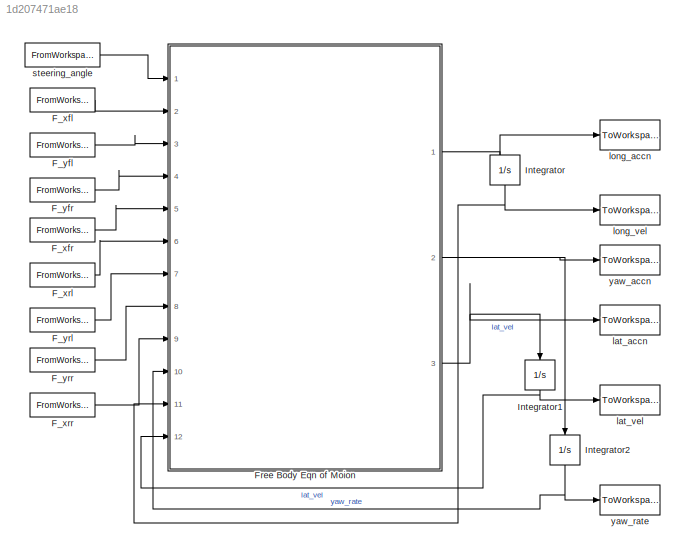
MODEL slx_1d207471ae18
KIND model
CONFIG AbsTol = auto
CONFIG FixedStep = auto
CONFIG MaxStep = auto
CONFIG MinStep = auto
CONFIG RelTol = 1e-3
CONFIG SampleTimeConstraint = Unconstrained
CONFIG Solver = ode45
CONFIG SolverMode = Auto
CONFIG SolverName = ode45
CONFIG StartTime = 0.0
CONFIG StopTime = 10.0
BLOCK [FromWorkspace] F_xfl
  SampleTime = 0
  VariableName = F_xfl
  ZeroCross = on
BLOCK [FromWorkspace] F_xfr
  SampleTime = 0
  VariableName = F_xfr
  ZeroCross = on
BLOCK [FromWorkspace] F_xrl
  SampleTime = 0
  VariableName = F_xrl
  ZeroCross = on
BLOCK [FromWorkspace] F_xrr
  SampleTime = 0
  VariableName = F_xrr
  ZeroCross = on
BLOCK [FromWorkspace] F_yfl
  SampleTime = 0
  VariableName = F_yfl
  ZeroCross = on
BLOCK [FromWorkspace] F_yfr
  SampleTime = 0
  VariableName = F_yfr
  ZeroCross = on
BLOCK [FromWorkspace] F_yrl
  SampleTime = 0
  VariableName = F_yrl
  ZeroCross = on
BLOCK [FromWorkspace] F_yrr
  SampleTime = 0
  VariableName = F_yrr
  ZeroCross = on
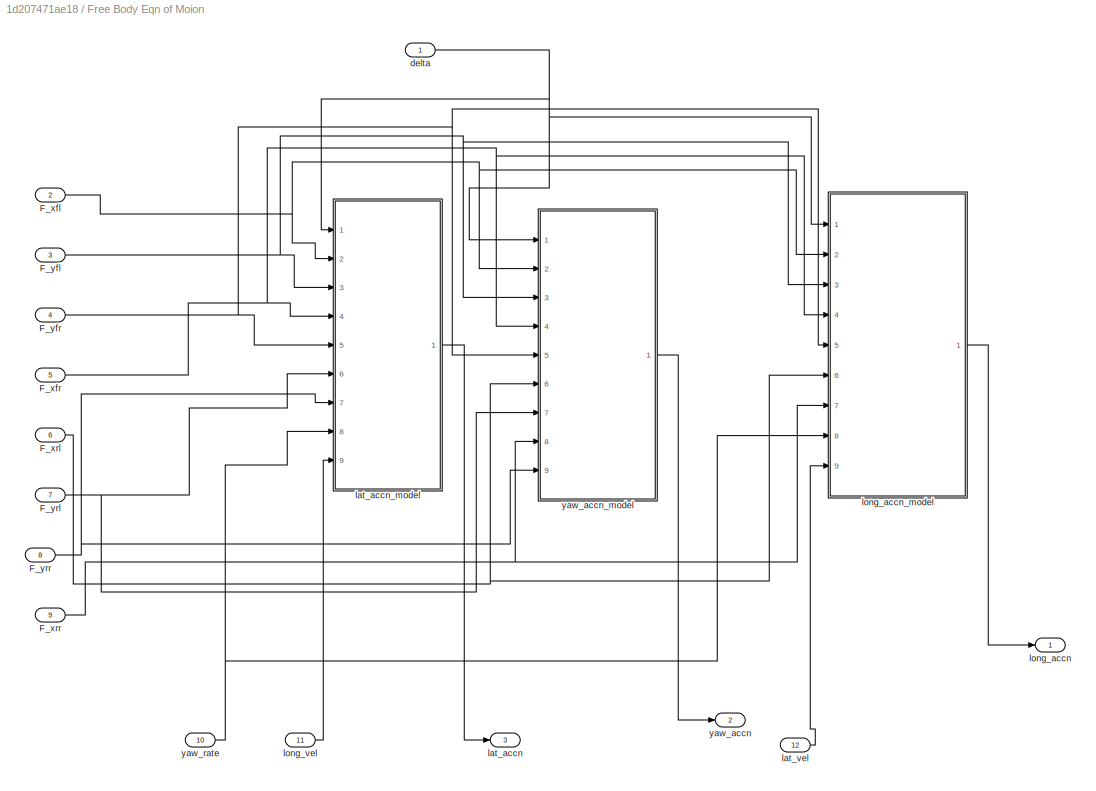
BLOCK [SubSystem] Free Body Eqn of Moion
  Ports = [12, 3]
  RequestExecContextInheritance = off
BLOCK [Inport] Free Body Eqn of Moion/F_xfl
  IconDisplay = Port number
  Port = 2
BLOCK [Inport] Free Body Eqn of Moion/F_xfr
  IconDisplay = Port number
  Port = 5
BLOCK [Inport] Free Body Eqn of Moion/F_xrl
  IconDisplay = Port number
  Port = 6
BLOCK [Inport] Free Body Eqn of Moion/F_xrr
  IconDisplay = Port number
  Port = 9
BLOCK [Inport] Free Body Eqn of Moion/F_yfl
  IconDisplay = Port number
  Port = 3
BLOCK [Inport] Free Body Eqn of Moion/F_yfr
  IconDisplay = Port number
  Port = 4
BLOCK [Inport] Free Body Eqn of Moion/F_yrl
  IconDisplay = Port number
  Port = 7
BLOCK [Inport] Free Body Eqn of Moion/F_yrr
  IconDisplay = Port number
  Port = 8
BLOCK [Inport] Free Body Eqn of Moion/delta
  IconDisplay = Port number
BLOCK [Outport] Free Body Eqn of Moion/lat_accn
  IconDisplay = Port number
  Port = 3
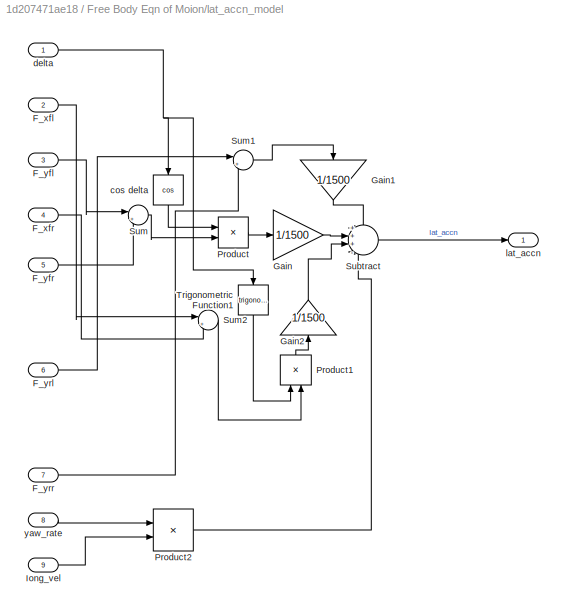
BLOCK [SubSystem] Free Body Eqn of Moion/lat_accn_model
  Ports = [9, 1]
  RequestExecContextInheritance = off
BLOCK [Inport] Free Body Eqn of Moion/lat_accn_model/F_xfl
  IconDisplay = Port number
  Port = 2
BLOCK [Inport] Free Body Eqn of Moion/lat_accn_model/F_xfr
  IconDisplay = Port number
  Port = 4
BLOCK [Inport] Free Body Eqn of Moion/lat_accn_model/F_yfl
  IconDisplay = Port number
  Port = 3
BLOCK [Inport] Free Body Eqn of Moion/lat_accn_model/F_yfr
  IconDisplay = Port number
  Port = 5
BLOCK [Inport] Free Body Eqn of Moion/lat_accn_model/F_yrl
  IconDisplay = Port number
  Port = 6
BLOCK [Inport] Free Body Eqn of Moion/lat_accn_model/F_yrr
  IconDisplay = Port number
  Port = 7
BLOCK [Gain] Free Body Eqn of Moion/lat_accn_model/Gain
  Gain = 1/1500
  OutDataTypeStr = Inherit: Inherit via internal rule
  ParamDataTypeStr = Inherit: Inherit via internal rule
  SaturateOnIntegerOverflow = off
BLOCK [Gain] Free Body Eqn of Moion/lat_accn_model/Gain1
  Gain = 1/1500
  OutDataTypeStr = Inherit: Inherit via internal rule
  ParamDataTypeStr = Inherit: Inherit via internal rule
  SaturateOnIntegerOverflow = off
BLOCK [Gain] Free Body Eqn of Moion/lat_accn_model/Gain2
  Gain = 1/1500
  OutDataTypeStr = Inherit: Inherit via internal rule
  ParamDataTypeStr = Inherit: Inherit via internal rule
  SaturateOnIntegerOverflow = off
BLOCK [Inport] Free Body Eqn of Moion/lat_accn_model/Iong_vel
  IconDisplay = Port number
  Port = 9
BLOCK [Product] Free Body Eqn of Moion/lat_accn_model/Product
  InputSameDT = off
  OutDataTypeStr = Inherit: Inherit via internal rule
  Ports = [2, 1]
  RndMeth = Floor
  SaturateOnIntegerOverflow = off
BLOCK [Product] Free Body Eqn of Moion/lat_accn_model/Product1
  InputSameDT = off
  OutDataTypeStr = Inherit: Inherit via internal rule
  Ports = [2, 1]
  RndMeth = Floor
  SaturateOnIntegerOverflow = off
BLOCK [Product] Free Body Eqn of Moion/lat_accn_model/Product2
  InputSameDT = off
  OutDataTypeStr = Inherit: Inherit via internal rule
  Ports = [2, 1]
  RndMeth = Floor
  SaturateOnIntegerOverflow = off
BLOCK [Sum] Free Body Eqn of Moion/lat_accn_model/Subtract
  IconShape = round
  InputSameDT = off
  Inputs = +++-
  OutDataTypeStr = Inherit: Inherit via internal rule
  Ports = [4, 1]
  SaturateOnIntegerOverflow = off
BLOCK [Sum] Free Body Eqn of Moion/lat_accn_model/Sum
  IconShape = round
  InputSameDT = off
  Inputs = |++
  OutDataTypeStr = Inherit: Inherit via internal rule
  Ports = [2, 1]
  SaturateOnIntegerOverflow = off
BLOCK [Sum] Free Body Eqn of Moion/lat_accn_model/Sum1
  IconShape = round
  InputSameDT = off
  Inputs = |++
  OutDataTypeStr = Inherit: Inherit via internal rule
  Ports = [2, 1]
  SaturateOnIntegerOverflow = off
BLOCK [Sum] Free Body Eqn of Moion/lat_accn_model/Sum2
  IconShape = round
  InputSameDT = off
  Inputs = |++
  OutDataTypeStr = Inherit: Inherit via internal rule
  Ports = [2, 1]
  SaturateOnIntegerOverflow = off
BLOCK [Trigonometry] Free Body Eqn of Moion/lat_accn_model/Trigonometric Function1
  Ports = [1, 1]
BLOCK [Trigonometry] Free Body Eqn of Moion/lat_accn_model/cos delta
  Operator = cos
  Ports = [1, 1]
BLOCK [Inport] Free Body Eqn of Moion/lat_accn_model/delta
  IconDisplay = Port number
BLOCK [Outport] Free Body Eqn of Moion/lat_accn_model/lat_accn
  IconDisplay = Port number
BLOCK [Inport] Free Body Eqn of Moion/lat_accn_model/yaw_rate
  IconDisplay = Port number
  Port = 8
BLOCK [Inport] Free Body Eqn of Moion/lat_vel
  IconDisplay = Port number
  Port = 12
BLOCK [Outport] Free Body Eqn of Moion/long_accn
  IconDisplay = Port number
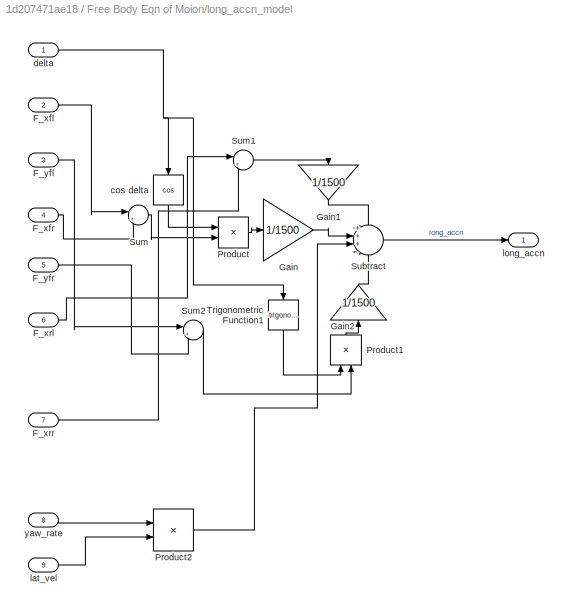
BLOCK [SubSystem] Free Body Eqn of Moion/long_accn_model
  Ports = [9, 1]
  RequestExecContextInheritance = off
BLOCK [Inport] Free Body Eqn of Moion/long_accn_model/F_xfl
  IconDisplay = Port number
  Port = 2
BLOCK [Inport] Free Body Eqn of Moion/long_accn_model/F_xfr
  IconDisplay = Port number
  Port = 4
BLOCK [Inport] Free Body Eqn of Moion/long_accn_model/F_xrl
  IconDisplay = Port number
  Port = 6
BLOCK [Inport] Free Body Eqn of Moion/long_accn_model/F_xrr
  IconDisplay = Port number
  Port = 7
BLOCK [Inport] Free Body Eqn of Moion/long_accn_model/F_yfl
  IconDisplay = Port number
  Port = 3
BLOCK [Inport] Free Body Eqn of Moion/long_accn_model/F_yfr
  IconDisplay = Port number
  Port = 5
BLOCK [Gain] Free Body Eqn of Moion/long_accn_model/Gain
  Gain = 1/1500
  OutDataTypeStr = Inherit: Inherit via internal rule
  ParamDataTypeStr = Inherit: Inherit via internal rule
  SaturateOnIntegerOverflow = off
BLOCK [Gain] Free Body Eqn of Moion/long_accn_model/Gain1
  Gain = 1/1500
  OutDataTypeStr = Inherit: Inherit via internal rule
  ParamDataTypeStr = Inherit: Inherit via internal rule
  SaturateOnIntegerOverflow = off
BLOCK [Gain] Free Body Eqn of Moion/long_accn_model/Gain2
  Gain = 1/1500
  OutDataTypeStr = Inherit: Inherit via internal rule
  ParamDataTypeStr = Inherit: Inherit via internal rule
  SaturateOnIntegerOverflow = off
BLOCK [Product] Free Body Eqn of Moion/long_accn_model/Product
  InputSameDT = off
  OutDataTypeStr = Inherit: Inherit via internal rule
  Ports = [2, 1]
  RndMeth = Floor
  SaturateOnIntegerOverflow = off
BLOCK [Product] Free Body Eqn of Moion/long_accn_model/Product1
  InputSameDT = off
  OutDataTypeStr = Inherit: Inherit via internal rule
  Ports = [2, 1]
  RndMeth = Floor
  SaturateOnIntegerOverflow = off
BLOCK [Product] Free Body Eqn of Moion/long_accn_model/Product2
  InputSameDT = off
  OutDataTypeStr = Inherit: Inherit via internal rule
  Ports = [2, 1]
  RndMeth = Floor
  SaturateOnIntegerOverflow = off
BLOCK [Sum] Free Body Eqn of Moion/long_accn_model/Subtract
  IconShape = round
  InputSameDT = off
  Inputs = +++-
  OutDataTypeStr = Inherit: Inherit via internal rule
  Ports = [4, 1]
  SaturateOnIntegerOverflow = off
BLOCK [Sum] Free Body Eqn of Moion/long_accn_model/Sum
  IconShape = round
  InputSameDT = off
  Inputs = |++
  OutDataTypeStr = Inherit: Inherit via internal rule
  Ports = [2, 1]
  SaturateOnIntegerOverflow = off
BLOCK [Sum] Free Body Eqn of Moion/long_accn_model/Sum1
  IconShape = round
  InputSameDT = off
  Inputs = |++
  OutDataTypeStr = Inherit: Inherit via internal rule
  Ports = [2, 1]
  SaturateOnIntegerOverflow = off
BLOCK [Sum] Free Body Eqn of Moion/long_accn_model/Sum2
  IconShape = round
  InputSameDT = off
  Inputs = |++
  OutDataTypeStr = Inherit: Inherit via internal rule
  Ports = [2, 1]
  SaturateOnIntegerOverflow = off
BLOCK [Trigonometry] Free Body Eqn of Moion/long_accn_model/Trigonometric Function1
  Ports = [1, 1]
BLOCK [Trigonometry] Free Body Eqn of Moion/long_accn_model/cos delta
  Operator = cos
  Ports = [1, 1]
BLOCK [Inport] Free Body Eqn of Moion/long_accn_model/delta
  IconDisplay = Port number
BLOCK [Inport] Free Body Eqn of Moion/long_accn_model/lat_vel
  IconDisplay = Port number
  Port = 9
BLOCK [Outport] Free Body Eqn of Moion/long_accn_model/long_accn
  IconDisplay = Port number
BLOCK [Inport] Free Body Eqn of Moion/long_accn_model/yaw_rate
  IconDisplay = Port number
  Port = 8
BLOCK [Inport] Free Body Eqn of Moion/long_vel
  IconDisplay = Port number
  Port = 11
BLOCK [Outport] Free Body Eqn of Moion/yaw_accn
  IconDisplay = Port number
  Port = 2
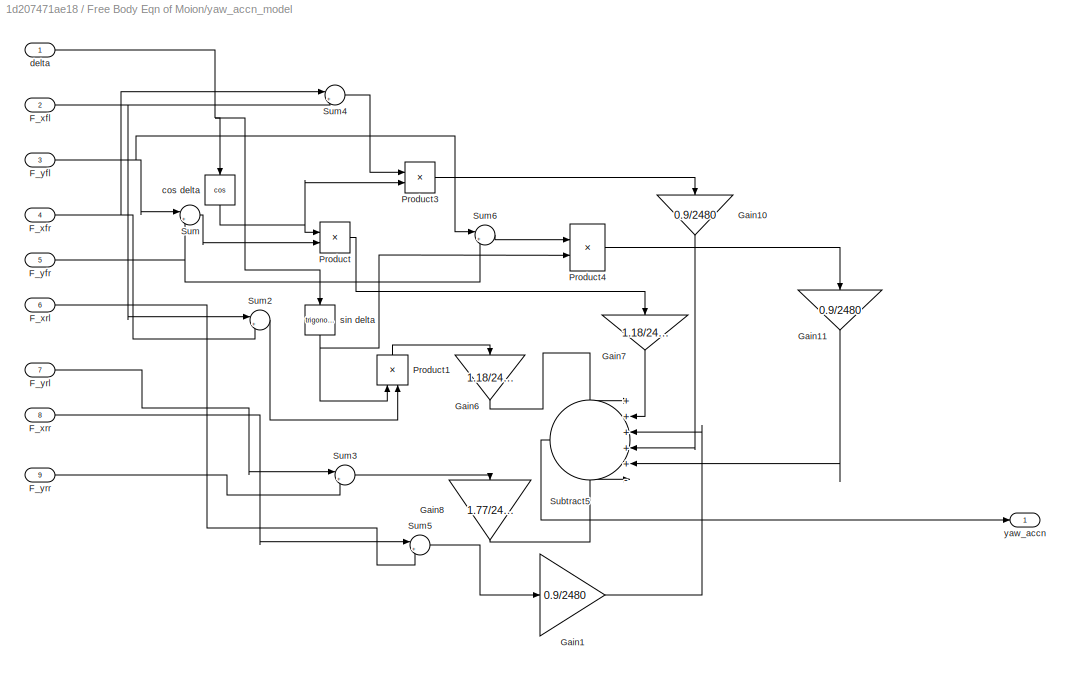
BLOCK [SubSystem] Free Body Eqn of Moion/yaw_accn_model
  Ports = [9, 1]
  RequestExecContextInheritance = off
BLOCK [Inport] Free Body Eqn of Moion/yaw_accn_model/F_xfl
  IconDisplay = Port number
  Port = 2
BLOCK [Inport] Free Body Eqn of Moion/yaw_accn_model/F_xfr
  IconDisplay = Port number
  Port = 4
BLOCK [Inport] Free Body Eqn of Moion/yaw_accn_model/F_xrl
  IconDisplay = Port number
  Port = 6
BLOCK [Inport] Free Body Eqn of Moion/yaw_accn_model/F_xrr
  IconDisplay = Port number
  Port = 8
BLOCK [Inport] Free Body Eqn of Moion/yaw_accn_model/F_yfl
  IconDisplay = Port number
  Port = 3
BLOCK [Inport] Free Body Eqn of Moion/yaw_accn_model/F_yfr
  IconDisplay = Port number
  Port = 5
BLOCK [Inport] Free Body Eqn of Moion/yaw_accn_model/F_yrl
  IconDisplay = Port number
  Port = 7
BLOCK [Inport] Free Body Eqn of Moion/yaw_accn_model/F_yrr
  IconDisplay = Port number
  Port = 9
BLOCK [Gain] Free Body Eqn of Moion/yaw_accn_model/Gain1
  Gain = 0.9/2480
  OutDataTypeStr = Inherit: Inherit via internal rule
  ParamDataTypeStr = Inherit: Inherit via internal rule
  SaturateOnIntegerOverflow = off
BLOCK [Gain] Free Body Eqn of Moion/yaw_accn_model/Gain10
  Gain = 0.9/2480
  OutDataTypeStr = Inherit: Inherit via internal rule
  ParamDataTypeStr = Inherit: Inherit via internal rule
  SaturateOnIntegerOverflow = off
BLOCK [Gain] Free Body Eqn of Moion/yaw_accn_model/Gain11
  Gain = 0.9/2480
  OutDataTypeStr = Inherit: Inherit via internal rule
  ParamDataTypeStr = Inherit: Inherit via internal rule
  SaturateOnIntegerOverflow = off
BLOCK [Gain] Free Body Eqn of Moion/yaw_accn_model/Gain6
  Gain = 1.18/2480
  OutDataTypeStr = Inherit: Inherit via internal rule
  ParamDataTypeStr = Inherit: Inherit via internal rule
  SaturateOnIntegerOverflow = off
BLOCK [Gain] Free Body Eqn of Moion/yaw_accn_model/Gain7
  Gain = 1.18/2480
  OutDataTypeStr = Inherit: Inherit via internal rule
  ParamDataTypeStr = Inherit: Inherit via internal rule
  SaturateOnIntegerOverflow = off
BLOCK [Gain] Free Body Eqn of Moion/yaw_accn_model/Gain8
  Gain = 1.77/2480
  OutDataTypeStr = Inherit: Inherit via internal rule
  ParamDataTypeStr = Inherit: Inherit via internal rule
  SaturateOnIntegerOverflow = off
BLOCK [Product] Free Body Eqn of Moion/yaw_accn_model/Product
  InputSameDT = off
  OutDataTypeStr = Inherit: Inherit via internal rule
  Ports = [2, 1]
  RndMeth = Floor
  SaturateOnIntegerOverflow = off
BLOCK [Product] Free Body Eqn of Moion/yaw_accn_model/Product1
  InputSameDT = off
  OutDataTypeStr = Inherit: Inherit via internal rule
  Ports = [2, 1]
  RndMeth = Floor
  SaturateOnIntegerOverflow = off
BLOCK [Product] Free Body Eqn of Moion/yaw_accn_model/Product3
  InputSameDT = off
  OutDataTypeStr = Inherit: Inherit via internal rule
  Ports = [2, 1]
  RndMeth = Floor
  SaturateOnIntegerOverflow = off
BLOCK [Product] Free Body Eqn of Moion/yaw_accn_model/Product4
  InputSameDT = off
  OutDataTypeStr = Inherit: Inherit via internal rule
  Ports = [2, 1]
  RndMeth = Floor
  SaturateOnIntegerOverflow = off
BLOCK [Sum] Free Body Eqn of Moion/yaw_accn_model/Subtract5
  IconShape = round
  InputSameDT = off
  Inputs = +++++-
  OutDataTypeStr = Inherit: Inherit via internal rule
  Ports = [6, 1]
  SaturateOnIntegerOverflow = off
BLOCK [Sum] Free Body Eqn of Moion/yaw_accn_model/Sum
  IconShape = round
  InputSameDT = off
  Inputs = |++
  OutDataTypeStr = Inherit: Inherit via internal rule
  Ports = [2, 1]
  SaturateOnIntegerOverflow = off
BLOCK [Sum] Free Body Eqn of Moion/yaw_accn_model/Sum2
  IconShape = round
  InputSameDT = off
  Inputs = |++
  OutDataTypeStr = Inherit: Inherit via internal rule
  Ports = [2, 1]
  SaturateOnIntegerOverflow = off
BLOCK [Sum] Free Body Eqn of Moion/yaw_accn_model/Sum3
  IconShape = round
  InputSameDT = off
  Inputs = |++
  OutDataTypeStr = Inherit: Inherit via internal rule
  Ports = [2, 1]
  SaturateOnIntegerOverflow = off
BLOCK [Sum] Free Body Eqn of Moion/yaw_accn_model/Sum4
  IconShape = round
  InputSameDT = off
  Inputs = |+-
  OutDataTypeStr = Inherit: Inherit via internal rule
  Ports = [2, 1]
  SaturateOnIntegerOverflow = off
BLOCK [Sum] Free Body Eqn of Moion/yaw_accn_model/Sum5
  IconShape = round
  InputSameDT = off
  Inputs = |+-
  OutDataTypeStr = Inherit: Inherit via internal rule
  Ports = [2, 1]
  SaturateOnIntegerOverflow = off
BLOCK [Sum] Free Body Eqn of Moion/yaw_accn_model/Sum6
  IconShape = round
  InputSameDT = off
  Inputs = |+-
  OutDataTypeStr = Inherit: Inherit via internal rule
  Ports = [2, 1]
  SaturateOnIntegerOverflow = off
BLOCK [Trigonometry] Free Body Eqn of Moion/yaw_accn_model/cos delta
  Operator = cos
  Ports = [1, 1]
BLOCK [Inport] Free Body Eqn of Moion/yaw_accn_model/delta
  IconDisplay = Port number
BLOCK [Trigonometry] Free Body Eqn of Moion/yaw_accn_model/sin delta 
  Ports = [1, 1]
BLOCK [Outport] Free Body Eqn of Moion/yaw_accn_model/yaw_accn
  IconDisplay = Port number
BLOCK [Inport] Free Body Eqn of Moion/yaw_rate
  IconDisplay = Port number
  Port = 10
BLOCK [Integrator] Integrator
  Ports = [1, 1]
BLOCK [Integrator] Integrator1
  Ports = [1, 1]
BLOCK [Integrator] Integrator2
  Ports = [1, 1]
BLOCK [ToWorkspace] lat_accn
  FixptAsFi = on
  MaxDataPoints = inf
  Ports = [1]
  SampleTime = -1
  Save2DSignal = 3-D array (concatenate along third dimension)
  SaveFormat = Timeseries
  VariableName = lat_accn
BLOCK [ToWorkspace] lat_vel
  FixptAsFi = on
  MaxDataPoints = inf
  Ports = [1]
  SampleTime = -1
  Save2DSignal = 3-D array (concatenate along third dimension)
  SaveFormat = Timeseries
  VariableName = lat_vel
BLOCK [ToWorkspace] long_accn
  FixptAsFi = on
  MaxDataPoints = inf
  Ports = [1]
  SampleTime = -1
  Save2DSignal = 3-D array (concatenate along third dimension)
  SaveFormat = Timeseries
  VariableName = long_accn
BLOCK [ToWorkspace] long_vel
  FixptAsFi = on
  MaxDataPoints = inf
  Ports = [1]
  SampleTime = -1
  Save2DSignal = 3-D array (concatenate along third dimension)
  SaveFormat = Timeseries
  VariableName = long_vel
BLOCK [FromWorkspace] steering_angle
  SampleTime = 0
  VariableName = steering_angle
  ZeroCross = on
BLOCK [ToWorkspace] yaw_accn
  FixptAsFi = on
  MaxDataPoints = inf
  Ports = [1]
  SampleTime = -1
  Save2DSignal = 3-D array (concatenate along third dimension)
  SaveFormat = Timeseries
  VariableName = yaw_accn
BLOCK [ToWorkspace] yaw_rate
  FixptAsFi = on
  MaxDataPoints = inf
  Ports = [1]
  SampleTime = -1
  Save2DSignal = 3-D array (concatenate along third dimension)
  SaveFormat = Timeseries
  VariableName = yaw_rate
LINE F_xfl:1 -> Free Body Eqn of Moion:2
LINE F_xfr:1 -> Free Body Eqn of Moion:5
LINE F_xrl:1 -> Free Body Eqn of Moion:6
LINE F_xrr:1 -> Free Body Eqn of Moion:9
LINE F_yfl:1 -> Free Body Eqn of Moion:3
LINE F_yfr:1 -> Free Body Eqn of Moion:4
LINE F_yrl:1 -> Free Body Eqn of Moion:7
LINE F_yrr:1 -> Free Body Eqn of Moion:8
NET Free Body Eqn of Moion/F_xfl:1 -> Free Body Eqn of Moion/lat_accn_model:2, Free Body Eqn of Moion/long_accn_model:2, Free Body Eqn of Moion/yaw_accn_model:2
NET Free Body Eqn of Moion/F_xfr:1 -> Free Body Eqn of Moion/lat_accn_model:4, Free Body Eqn of Moion/long_accn_model:4, Free Body Eqn of Moion/yaw_accn_model:4
NET Free Body Eqn of Moion/F_xrl:1 -> Free Body Eqn of Moion/long_accn_model:6, Free Body Eqn of Moion/yaw_accn_model:6
NET Free Body Eqn of Moion/F_xrr:1 -> Free Body Eqn of Moion/long_accn_model:7, Free Body Eqn of Moion/yaw_accn_model:8
NET Free Body Eqn of Moion/F_yfl:1 -> Free Body Eqn of Moion/lat_accn_model:3, Free Body Eqn of Moion/long_accn_model:3, Free Body Eqn of Moion/yaw_accn_model:3
NET Free Body Eqn of Moion/F_yfr:1 -> Free Body Eqn of Moion/lat_accn_model:5, Free Body Eqn of Moion/long_accn_model:5, Free Body Eqn of Moion/yaw_accn_model:5
NET Free Body Eqn of Moion/F_yrl:1 -> Free Body Eqn of Moion/lat_accn_model:6, Free Body Eqn of Moion/yaw_accn_model:7
NET Free Body Eqn of Moion/F_yrr:1 -> Free Body Eqn of Moion/lat_accn_model:7, Free Body Eqn of Moion/yaw_accn_model:9
NET Free Body Eqn of Moion/delta:1 -> Free Body Eqn of Moion/lat_accn_model:1, Free Body Eqn of Moion/long_accn_model:1, Free Body Eqn of Moion/yaw_accn_model:1
LINE Free Body Eqn of Moion/lat_accn_model/F_xfl:1 -> Free Body Eqn of Moion/lat_accn_model/Sum2:1
LINE Free Body Eqn of Moion/lat_accn_model/F_xfr:1 -> Free Body Eqn of Moion/lat_accn_model/Sum2:2
LINE Free Body Eqn of Moion/lat_accn_model/F_yfl:1 -> Free Body Eqn of Moion/lat_accn_model/Sum:1
LINE Free Body Eqn of Moion/lat_accn_model/F_yfr:1 -> Free Body Eqn of Moion/lat_accn_model/Sum:2
LINE Free Body Eqn of Moion/lat_accn_model/F_yrl:1 -> Free Body Eqn of Moion/lat_accn_model/Sum1:1
LINE Free Body Eqn of Moion/lat_accn_model/F_yrr:1 -> Free Body Eqn of Moion/lat_accn_model/Sum1:2
LINE Free Body Eqn of Moion/lat_accn_model/Gain1:1 -> Free Body Eqn of Moion/lat_accn_model/Subtract:1
LINE Free Body Eqn of Moion/lat_accn_model/Gain2:1 -> Free Body Eqn of Moion/lat_accn_model/Subtract:3
LINE Free Body Eqn of Moion/lat_accn_model/Gain:1 -> Free Body Eqn of Moion/lat_accn_model/Subtract:2
LINE Free Body Eqn of Moion/lat_accn_model/Iong_vel:1 -> Free Body Eqn of Moion/lat_accn_model/Product2:2
LINE Free Body Eqn of Moion/lat_accn_model/Product1:1 -> Free Body Eqn of Moion/lat_accn_model/Gain2:1
LINE Free Body Eqn of Moion/lat_accn_model/Product2:1 -> Free Body Eqn of Moion/lat_accn_model/Subtract:4
LINE Free Body Eqn of Moion/lat_accn_model/Product:1 -> Free Body Eqn of Moion/lat_accn_model/Gain:1
LINE Free Body Eqn of Moion/lat_accn_model/Subtract:1 -> Free Body Eqn of Moion/lat_accn_model/lat_accn:1
LINE Free Body Eqn of Moion/lat_accn_model/Sum1:1 -> Free Body Eqn of Moion/lat_accn_model/Gain1:1
LINE Free Body Eqn of Moion/lat_accn_model/Sum2:1 -> Free Body Eqn of Moion/lat_accn_model/Product1:2
LINE Free Body Eqn of Moion/lat_accn_model/Sum:1 -> Free Body Eqn of Moion/lat_accn_model/Product:2
LINE Free Body Eqn of Moion/lat_accn_model/Trigonometric Function1:1 -> Free Body Eqn of Moion/lat_accn_model/Product1:1
LINE Free Body Eqn of Moion/lat_accn_model/cos delta:1 -> Free Body Eqn of Moion/lat_accn_model/Product:1
NET Free Body Eqn of Moion/lat_accn_model/delta:1 -> Free Body Eqn of Moion/lat_accn_model/Trigonometric Function1:1, Free Body Eqn of Moion/lat_accn_model/cos delta:1
LINE Free Body Eqn of Moion/lat_accn_model/yaw_rate:1 -> Free Body Eqn of Moion/lat_accn_model/Product2:1
LINE Free Body Eqn of Moion/lat_accn_model:1 -> Free Body Eqn of Moion/lat_accn:1
LINE Free Body Eqn of Moion/lat_vel:1 -> Free Body Eqn of Moion/long_accn_model:9
LINE Free Body Eqn of Moion/long_accn_model/F_xfl:1 -> Free Body Eqn of Moion/long_accn_model/Sum:1
LINE Free Body Eqn of Moion/long_accn_model/F_xfr:1 -> Free Body Eqn of Moion/long_accn_model/Sum:2
LINE Free Body Eqn of Moion/long_accn_model/F_xrl:1 -> Free Body Eqn of Moion/long_accn_model/Sum1:1
LINE Free Body Eqn of Moion/long_accn_model/F_xrr:1 -> Free Body Eqn of Moion/long_accn_model/Sum1:2
LINE Free Body Eqn of Moion/long_accn_model/F_yfl:1 -> Free Body Eqn of Moion/long_accn_model/Sum2:1
LINE Free Body Eqn of Moion/long_accn_model/F_yfr:1 -> Free Body Eqn of Moion/long_accn_model/Sum2:2
LINE Free Body Eqn of Moion/long_accn_model/Gain1:1 -> Free Body Eqn of Moion/long_accn_model/Subtract:1
LINE Free Body Eqn of Moion/long_accn_model/Gain2:1 -> Free Body Eqn of Moion/long_accn_model/Subtract:4
LINE Free Body Eqn of Moion/long_accn_model/Gain:1 -> Free Body Eqn of Moion/long_accn_model/Subtract:2
LINE Free Body Eqn of Moion/long_accn_model/Product1:1 -> Free Body Eqn of Moion/long_accn_model/Gain2:1
LINE Free Body Eqn of Moion/long_accn_model/Product2:1 -> Free Body Eqn of Moion/long_accn_model/Subtract:3
LINE Free Body Eqn of Moion/long_accn_model/Product:1 -> Free Body Eqn of Moion/long_accn_model/Gain:1
LINE Free Body Eqn of Moion/long_accn_model/Subtract:1 -> Free Body Eqn of Moion/long_accn_model/long_accn:1
LINE Free Body Eqn of Moion/long_accn_model/Sum1:1 -> Free Body Eqn of Moion/long_accn_model/Gain1:1
LINE Free Body Eqn of Moion/long_accn_model/Sum2:1 -> Free Body Eqn of Moion/long_accn_model/Product1:2
LINE Free Body Eqn of Moion/long_accn_model/Sum:1 -> Free Body Eqn of Moion/long_accn_model/Product:2
LINE Free Body Eqn of Moion/long_accn_model/Trigonometric Function1:1 -> Free Body Eqn of Moion/long_accn_model/Product1:1
LINE Free Body Eqn of Moion/long_accn_model/cos delta:1 -> Free Body Eqn of Moion/long_accn_model/Product:1
NET Free Body Eqn of Moion/long_accn_model/delta:1 -> Free Body Eqn of Moion/long_accn_model/Trigonometric Function1:1, Free Body Eqn of Moion/long_accn_model/cos delta:1
LINE Free Body Eqn of Moion/long_accn_model/lat_vel:1 -> Free Body Eqn of Moion/long_accn_model/Product2:2
LINE Free Body Eqn of Moion/long_accn_model/yaw_rate:1 -> Free Body Eqn of Moion/long_accn_model/Product2:1
LINE Free Body Eqn of Moion/long_accn_model:1 -> Free Body Eqn of Moion/long_accn:1
LINE Free Body Eqn of Moion/long_vel:1 -> Free Body Eqn of Moion/lat_accn_model:9
NET Free Body Eqn of Moion/yaw_accn_model/F_xfl:1 -> Free Body Eqn of Moion/yaw_accn_model/Sum2:1, Free Body Eqn of Moion/yaw_accn_model/Sum4:2
NET Free Body Eqn of Moion/yaw_accn_model/F_xfr:1 -> Free Body Eqn of Moion/yaw_accn_model/Sum2:2, Free Body Eqn of Moion/yaw_accn_model/Sum4:1
LINE Free Body Eqn of Moion/yaw_accn_model/F_xrl:1 -> Free Body Eqn of Moion/yaw_accn_model/Sum5:2
LINE Free Body Eqn of Moion/yaw_accn_model/F_xrr:1 -> Free Body Eqn of Moion/yaw_accn_model/Sum5:1
NET Free Body Eqn of Moion/yaw_accn_model/F_yfl:1 -> Free Body Eqn of Moion/yaw_accn_model/Sum6:1, Free Body Eqn of Moion/yaw_accn_model/Sum:1
NET Free Body Eqn of Moion/yaw_accn_model/F_yfr:1 -> Free Body Eqn of Moion/yaw_accn_model/Sum6:2, Free Body Eqn of Moion/yaw_accn_model/Sum:2
LINE Free Body Eqn of Moion/yaw_accn_model/F_yrl:1 -> Free Body Eqn of Moion/yaw_accn_model/Sum3:1
LINE Free Body Eqn of Moion/yaw_accn_model/F_yrr:1 -> Free Body Eqn of Moion/yaw_accn_model/Sum3:2
LINE Free Body Eqn of Moion/yaw_accn_model/Gain10:1 -> Free Body Eqn of Moion/yaw_accn_model/Subtract5:4
LINE Free Body Eqn of Moion/yaw_accn_model/Gain11:1 -> Free Body Eqn of Moion/yaw_accn_model/Subtract5:5
LINE Free Body Eqn of Moion/yaw_accn_model/Gain1:1 -> Free Body Eqn of Moion/yaw_accn_model/Subtract5:3
LINE Free Body Eqn of Moion/yaw_accn_model/Gain6:1 -> Free Body Eqn of Moion/yaw_accn_model/Subtract5:1
LINE Free Body Eqn of Moion/yaw_accn_model/Gain7:1 -> Free Body Eqn of Moion/yaw_accn_model/Subtract5:2
LINE Free Body Eqn of Moion/yaw_accn_model/Gain8:1 -> Free Body Eqn of Moion/yaw_accn_model/Subtract5:6
LINE Free Body Eqn of Moion/yaw_accn_model/Product1:1 -> Free Body Eqn of Moion/yaw_accn_model/Gain6:1
LINE Free Body Eqn of Moion/yaw_accn_model/Product3:1 -> Free Body Eqn of Moion/yaw_accn_model/Gain10:1
LINE Free Body Eqn of Moion/yaw_accn_model/Product4:1 -> Free Body Eqn of Moion/yaw_accn_model/Gain11:1
LINE Free Body Eqn of Moion/yaw_accn_model/Product:1 -> Free Body Eqn of Moion/yaw_accn_model/Gain7:1
LINE Free Body Eqn of Moion/yaw_accn_model/Subtract5:1 -> Free Body Eqn of Moion/yaw_accn_model/yaw_accn:1
LINE Free Body Eqn of Moion/yaw_accn_model/Sum2:1 -> Free Body Eqn of Moion/yaw_accn_model/Product1:2
LINE Free Body Eqn of Moion/yaw_accn_model/Sum3:1 -> Free Body Eqn of Moion/yaw_accn_model/Gain8:1
LINE Free Body Eqn of Moion/yaw_accn_model/Sum4:1 -> Free Body Eqn of Moion/yaw_accn_model/Product3:1
LINE Free Body Eqn of Moion/yaw_accn_model/Sum5:1 -> Free Body Eqn of Moion/yaw_accn_model/Gain1:1
LINE Free Body Eqn of Moion/yaw_accn_model/Sum6:1 -> Free Body Eqn of Moion/yaw_accn_model/Product4:1
LINE Free Body Eqn of Moion/yaw_accn_model/Sum:1 -> Free Body Eqn of Moion/yaw_accn_model/Product:2
NET Free Body Eqn of Moion/yaw_accn_model/cos delta:1 -> Free Body Eqn of Moion/yaw_accn_model/Product3:2, Free Body Eqn of Moion/yaw_accn_model/Product:1
NET Free Body Eqn of Moion/yaw_accn_model/delta:1 -> Free Body Eqn of Moion/yaw_accn_model/cos delta:1, Free Body Eqn of Moion/yaw_accn_model/sin delta :1
NET Free Body Eqn of Moion/yaw_accn_model/sin delta :1 -> Free Body Eqn of Moion/yaw_accn_model/Product1:1, Free Body Eqn of Moion/yaw_accn_model/Product4:2
LINE Free Body Eqn of Moion/yaw_accn_model:1 -> Free Body Eqn of Moion/yaw_accn:1
NET Free Body Eqn of Moion/yaw_rate:1 -> Free Body Eqn of Moion/lat_accn_model:8, Free Body Eqn of Moion/long_accn_model:8
NET Free Body Eqn of Moion:1 -> Integrator:1, long_accn:1
NET Free Body Eqn of Moion:2 -> Integrator2:1, yaw_accn:1
NET Free Body Eqn of Moion:3 -> Integrator1:1, lat_accn:1
NET Integrator1:1 -> Free Body Eqn of Moion:12, lat_vel:1
NET Integrator2:1 -> Free Body Eqn of Moion:10, yaw_rate:1
NET Integrator:1 -> Free Body Eqn of Moion:11, long_vel:1
LINE steering_angle:1 -> Free Body Eqn of Moion:1
note: NET lines group one-source signal fan-out (src -> all destinations, sorted); 1:1 wires keep LINE
